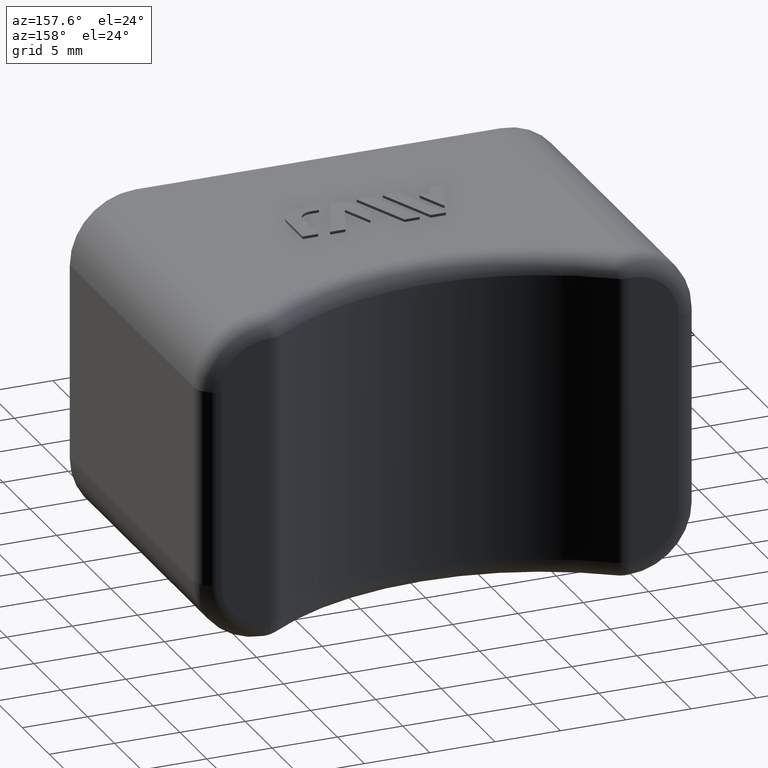
[diagram: clean part render]
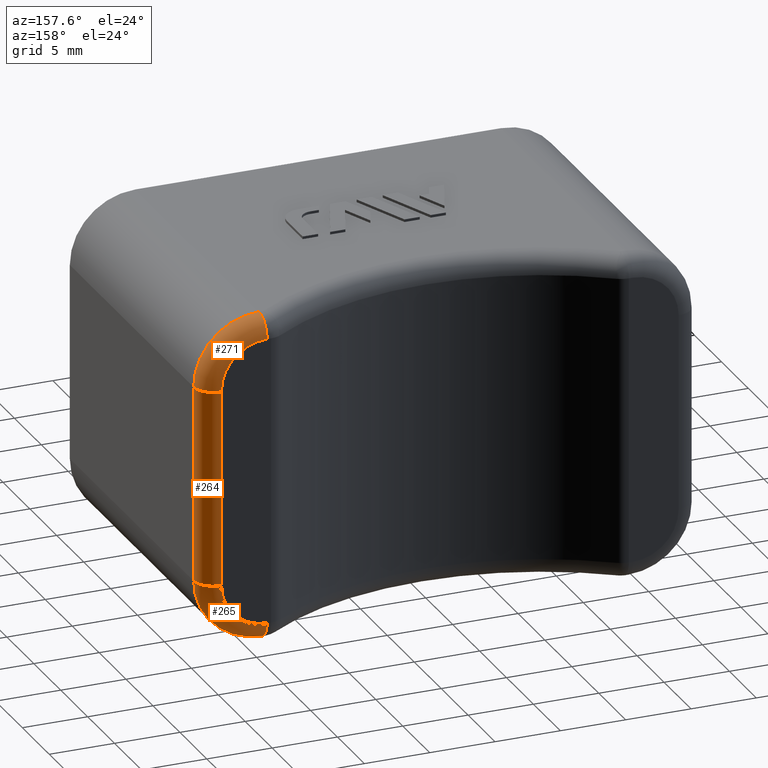
[diagram: same view with one multi-face feature highlighted, each face labeled with its STEP entity id]
A machine part, auxiliary view. The highlighted faces form ONE feature: a constant-radius fillet chain: 3 tangent blend faces with common blend radius 1.5 mm. The faces share edges in the B-rep.
Their STEP definitions:
[1] entity #265 (Torus):
#265 = ADVANCED_FACE( '', ( #740 ), #741, .T. );
#740 = FACE_OUTER_BOUND( '', #1276, .T. );
#741 = TOROIDAL_SURFACE( '', #1277, 3.50000000000000, 1.50000000000000 );
#1276 = EDGE_LOOP( '', ( #2956, #2957, #2958, #2959 ) );
#1277 = AXIS2_PLACEMENT_3D( '', #2960, #2961, #2962 );
#2956 = ORIENTED_EDGE( '', *, *, #4003, .T. );
#2957 = ORIENTED_EDGE( '', *, *, #3659, .F. );
#2958 = ORIENTED_EDGE( '', *, *, #4004, .F. );
#2959 = ORIENTED_EDGE( '', *, *, #3999, .F. );
#2960 = CARTESIAN_POINT( '', ( 14.0000000000000, 23.0000000000000, -7.50000000000000 ) );
#2961 = DIRECTION( '', ( 0.000000000000000, 1.00000000000000, 0.000000000000000 ) );
#2962 = DIRECTION( '', ( 0.000000000000000, 0.000000000000000, 1.00000000000000 ) );
#3659 = EDGE_CURVE( '', #4488, #4508, #4509, .F. );
#3999 = EDGE_CURVE( '', #5027, #5018, #5029, .T. );
#4003 = EDGE_CURVE( '', #5027, #4508, #5033, .T. );
#4004 = EDGE_CURVE( '', #5018, #4488, #5034, .T. );
#4488 = VERTEX_POINT( '', #5743 );
#4508 = VERTEX_POINT( '', #5768 );
#4509 = CIRCLE( '', #5769, 5.00000000000000 );
#5018 = VERTEX_POINT( '', #6524 );
#5027 = VERTEX_POINT( '', #6536 );
#5029 = CIRCLE( '', #6539, 3.50000000000000 );
#5033 = CIRCLE( '', #6544, 1.50000000000000 );
#5034 = CIRCLE( '', #6545, 1.50000000000000 );
#5743 = CARTESIAN_POINT( '', ( 14.0000000000000, 23.0000000000000, -12.5000000000000 ) );
#5768 = CARTESIAN_POINT( '', ( 19.0000000000000, 23.0000000000000, -7.50000000000000 ) );
#5769 = AXIS2_PLACEMENT_3D( '', #6947, #6948, #6949 );
#6524 = CARTESIAN_POINT( '', ( 14.0000000000000, 24.5000000000000, -11.0000000000000 ) );
#6536 = CARTESIAN_POINT( '', ( 17.5000000000000, 24.5000000000000, -7.50000000000000 ) );
#6539 = AXIS2_PLACEMENT_3D( '', #7467, #7468, #7469 );
#6544 = AXIS2_PLACEMENT_3D( '', #7477, #7478, #7479 );
#6545 = AXIS2_PLACEMENT_3D( '', #7480, #7481, #7482 );
#6947 = CARTESIAN_POINT( '', ( 14.0000000000000, 23.0000000000000, -7.50000000000000 ) );
#6948 = DIRECTION( '', ( 0.000000000000000, 1.00000000000000, 0.000000000000000 ) );
#6949 = DIRECTION( '', ( 0.000000000000000, 0.000000000000000, 1.00000000000000 ) );
#7467 = CARTESIAN_POINT( '', ( 14.0000000000000, 24.5000000000000, -7.50000000000000 ) );
#7468 = DIRECTION( '', ( 0.000000000000000, 1.00000000000000, 0.000000000000000 ) );
#7469 = DIRECTION( '', ( 0.000000000000000, 0.000000000000000, 1.00000000000000 ) );
#7477 = CARTESIAN_POINT( '', ( 17.5000000000000, 23.0000000000000, -7.50000000000000 ) );
#7478 = DIRECTION( '', ( 0.000000000000000, 0.000000000000000, -1.00000000000000 ) );
#7479 = DIRECTION( '', ( -1.00000000000000, 0.000000000000000, 0.000000000000000 ) );
#7480 = CARTESIAN_POINT( '', ( 14.0000000000000, 23.0000000000000, -11.0000000000000 ) );
#7481 = DIRECTION( '', ( -1.00000000000000, 0.000000000000000, 0.000000000000000 ) );
#7482 = DIRECTION( '', ( 0.000000000000000, 0.000000000000000, 1.00000000000000 ) );
[2] entity #264 (Cylinder):
#264 = ADVANCED_FACE( '', ( #738 ), #739, .T. );
#738 = FACE_OUTER_BOUND( '', #1274, .T. );
#739 = CYLINDRICAL_SURFACE( '', #1275, 1.50000000000000 );
#1274 = EDGE_LOOP( '', ( #2949, #2950, #2951, #2952 ) );
#1275 = AXIS2_PLACEMENT_3D( '', #2953, #2954, #2955 );
#2949 = ORIENTED_EDGE( '', *, *, #4002, .T. );
#2950 = ORIENTED_EDGE( '', *, *, #4000, .F. );
#2951 = ORIENTED_EDGE( '', *, *, #4003, .F. );
#2952 = ORIENTED_EDGE( '', *, *, #3998, .F. );
#2953 = CARTESIAN_POINT( '', ( 17.5000000000000, 23.0000000000000, -12.5000000000000 ) );
#2954 = DIRECTION( '', ( 0.000000000000000, 0.000000000000000, -1.00000000000000 ) );
#2955 = DIRECTION( '', ( 1.00000000000000, 0.000000000000000, 0.000000000000000 ) );
#3998 = EDGE_CURVE( '', #5025, #5027, #5028, .F. );
#4000 = EDGE_CURVE( '', #4508, #4512, #5030, .T. );
#4002 = EDGE_CURVE( '', #5025, #4512, #5032, .T. );
#4003 = EDGE_CURVE( '', #5027, #4508, #5033, .T. );
#4508 = VERTEX_POINT( '', #5768 );
#4512 = VERTEX_POINT( '', #5774 );
#5025 = VERTEX_POINT( '', #6534 );
#5027 = VERTEX_POINT( '', #6536 );
#5028 = LINE( '', #6537, #6538 );
#5030 = LINE( '', #6540, #6541 );
#5032 = CIRCLE( '', #6543, 1.50000000000000 );
#5033 = CIRCLE( '', #6544, 1.50000000000000 );
#5768 = CARTESIAN_POINT( '', ( 19.0000000000000, 23.0000000000000, -7.50000000000000 ) );
#5774 = CARTESIAN_POINT( '', ( 19.0000000000000, 23.0000000000000, 7.50000000000000 ) );
#6534 = CARTESIAN_POINT( '', ( 17.5000000000000, 24.5000000000000, 7.50000000000000 ) );
#6536 = CARTESIAN_POINT( '', ( 17.5000000000000, 24.5000000000000, -7.50000000000000 ) );
#6537 = CARTESIAN_POINT( '', ( 17.5000000000000, 24.5000000000000, -12.5000000000000 ) );
#6538 = VECTOR( '', #7466, 1000.00000000000 );
#6540 = CARTESIAN_POINT( '', ( 19.0000000000000, 23.0000000000000, -12.5000000000000 ) );
#6541 = VECTOR( '', #7470, 1000.00000000000 );
#6543 = AXIS2_PLACEMENT_3D( '', #7474, #7475, #7476 );
#6544 = AXIS2_PLACEMENT_3D( '', #7477, #7478, #7479 );
#7466 = DIRECTION( '', ( 0.000000000000000, 0.000000000000000, 1.00000000000000 ) );
#7470 = DIRECTION( '', ( 0.000000000000000, 0.000000000000000, 1.00000000000000 ) );
#7474 = CARTESIAN_POINT( '', ( 17.5000000000000, 23.0000000000000, 7.50000000000000 ) );
#7475 = DIRECTION( '', ( 0.000000000000000, 0.000000000000000, -1.00000000000000 ) );
#7476 = DIRECTION( '', ( -1.00000000000000, 0.000000000000000, 0.000000000000000 ) );
#7477 = CARTESIAN_POINT( '', ( 17.5000000000000, 23.0000000000000, -7.50000000000000 ) );
#7478 = DIRECTION( '', ( 0.000000000000000, 0.000000000000000, -1.00000000000000 ) );
#7479 = DIRECTION( '', ( -1.00000000000000, 0.000000000000000, 0.000000000000000 ) );
[3] entity #271 (Torus):
#271 = ADVANCED_FACE( '', ( #752 ), #753, .T. );
#752 = FACE_OUTER_BOUND( '', #1288, .T. );
#753 = TOROIDAL_SURFACE( '', #1289, 3.50000000000000, 1.50000000000000 );
#1288 = EDGE_LOOP( '', ( #2997, #2998, #2999, #3000 ) );
#1289 = AXIS2_PLACEMENT_3D( '', #3001, #3002, #3003 );
#2997 = ORIENTED_EDGE( '', *, *, #4011, .F. );
#2998 = ORIENTED_EDGE( '', *, *, #3663, .F. );
#2999 = ORIENTED_EDGE( '', *, *, #4002, .F. );
#3000 = ORIENTED_EDGE( '', *, *, #3997, .F. );
#3001 = CARTESIAN_POINT( '', ( 14.0000000000000, 23.0000000000000, 7.50000000000000 ) );
#3002 = DIRECTION( '', ( 0.000000000000000, 1.00000000000000, 0.000000000000000 ) );
#3003 = DIRECTION( '', ( 0.000000000000000, 0.000000000000000, 1.00000000000000 ) );
#3663 = EDGE_CURVE( '', #4512, #4440, #4514, .F. );
#3997 = EDGE_CURVE( '', #5023, #5025, #5026, .T. );
#4002 = EDGE_CURVE( '', #5025, #4512, #5032, .T. );
#4011 = EDGE_CURVE( '', #4440, #5023, #5041, .T. );
#4440 = VERTEX_POINT( '', #5674 );
#4512 = VERTEX_POINT( '', #5774 );
#4514 = CIRCLE( '', #5777, 5.00000000000000 );
#5023 = VERTEX_POINT( '', #6531 );
#5025 = VERTEX_POINT( '', #6534 );
#5026 = CIRCLE( '', #6535, 3.50000000000000 );
#5032 = CIRCLE( '', #6543, 1.50000000000000 );
#5041 = CIRCLE( '', #6552, 1.50000000000000 );
#5674 = CARTESIAN_POINT( '', ( 14.0000000000000, 23.0000000000000, 12.5000000000000 ) );
#5774 = CARTESIAN_POINT( '', ( 19.0000000000000, 23.0000000000000, 7.50000000000000 ) );
#5777 = AXIS2_PLACEMENT_3D( '', #6953, #6954, #6955 );
#6531 = CARTESIAN_POINT( '', ( 14.0000000000000, 24.5000000000000, 11.0000000000000 ) );
#6534 = CARTESIAN_POINT( '', ( 17.5000000000000, 24.5000000000000, 7.50000000000000 ) );
#6535 = AXIS2_PLACEMENT_3D( '', #7463, #7464, #7465 );
#6543 = AXIS2_PLACEMENT_3D( '', #7474, #7475, #7476 );
#6552 = AXIS2_PLACEMENT_3D( '', #7501, #7502, #7503 );
#6953 = CARTESIAN_POINT( '', ( 14.0000000000000, 23.0000000000000, 7.50000000000000 ) );
#6954 = DIRECTION( '', ( 0.000000000000000, 1.00000000000000, 0.000000000000000 ) );
#6955 = DIRECTION( '', ( 0.000000000000000, 0.000000000000000, 1.00000000000000 ) );
#7463 = CARTESIAN_POINT( '', ( 14.0000000000000, 24.5000000000000, 7.50000000000000 ) );
#7464 = DIRECTION( '', ( 0.000000000000000, 1.00000000000000, 0.000000000000000 ) );
#7465 = DIRECTION( '', ( 0.000000000000000, 0.000000000000000, 1.00000000000000 ) );
#7474 = CARTESIAN_POINT( '', ( 17.5000000000000, 23.0000000000000, 7.50000000000000 ) );
#7475 = DIRECTION( '', ( 0.000000000000000, 0.000000000000000, -1.00000000000000 ) );
#7476 = DIRECTION( '', ( -1.00000000000000, 0.000000000000000, 0.000000000000000 ) );
#7501 = CARTESIAN_POINT( '', ( 14.0000000000000, 23.0000000000000, 11.0000000000000 ) );
#7502 = DIRECTION( '', ( -1.00000000000000, 0.000000000000000, 0.000000000000000 ) );
#7503 = DIRECTION( '', ( 0.000000000000000, 0.000000000000000, 1.00000000000000 ) );